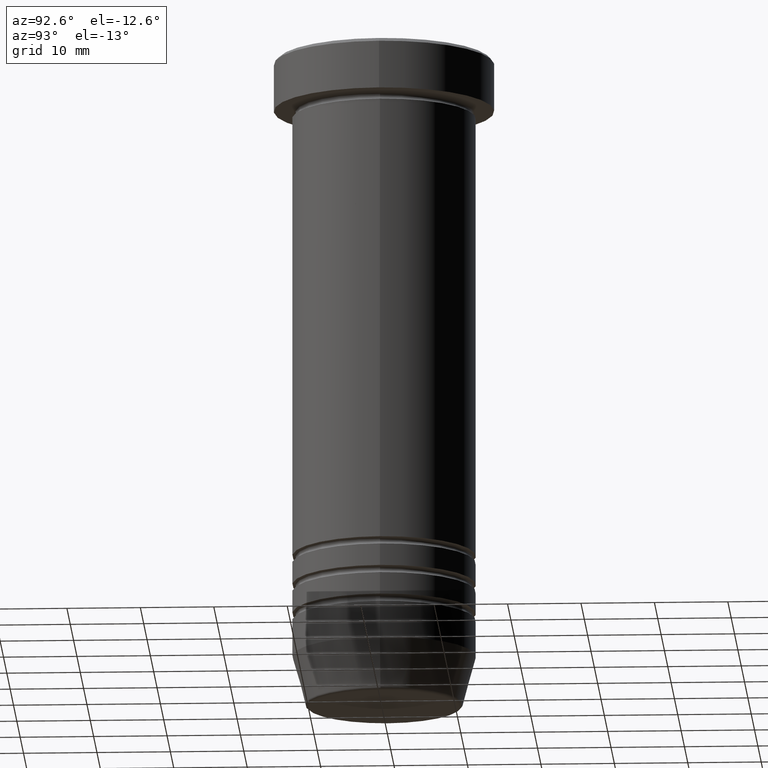
[diagram: clean part render]
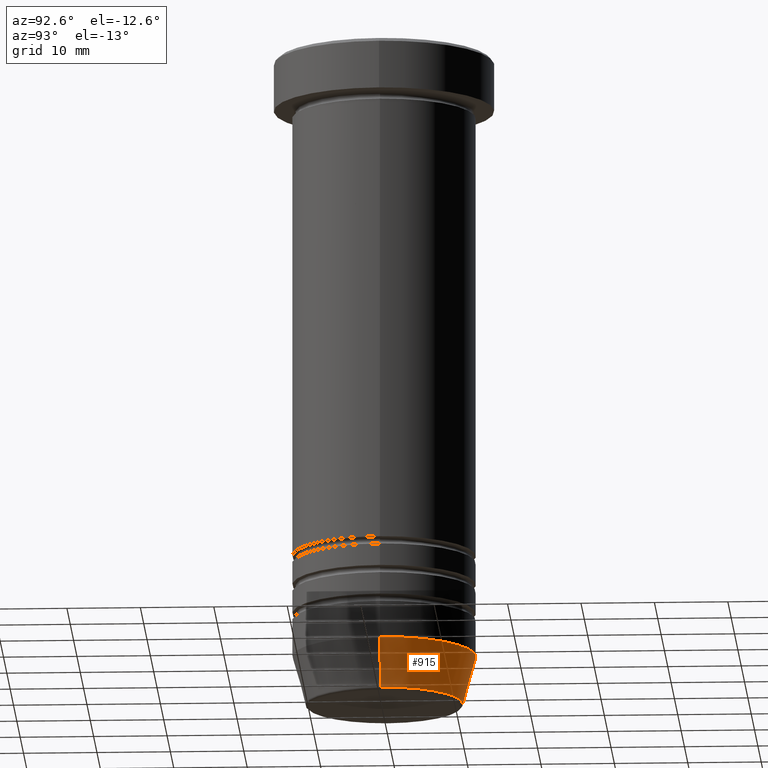
[diagram: same view with one face highlighted and labeled with its STEP entity id]
A machine part, auxiliary view. The second image highlights one B-rep face of the part: STEP entity #915.
In plain terms, the highlighted conical surface has half-angle 15 deg.
Its self-contained STEP definition (entity closure, byte-faithful):
#17 = DIRECTION ( 'NONE',  ( -0.000000000000000000, -0.000000000000000000, 1.000000000000000000 ) ) ;
#50 = FACE_OUTER_BOUND ( 'NONE', #231, .T. ) ;
#74 = EDGE_CURVE ( 'NONE', #505, #711, #742, .T. ) ;
#82 = EDGE_CURVE ( 'NONE', #284, #711, #452, .T. ) ;
#125 = DIRECTION ( 'NONE',  ( 1.000000000000000000, 0.000000000000000000, 0.000000000000000000 ) ) ;
#143 = CARTESIAN_POINT ( 'NONE',  ( -10.62435565298213547, 1.301108314342765923E-15, -90.00000000000000000 ) ) ;
#170 = VECTOR ( 'NONE', #1027, 1000.000000000000000 ) ;
#179 = DIRECTION ( 'NONE',  ( 0.2588190451025213501, 0.000000000000000000, 0.9659258262890680902 ) ) ;
#231 = EDGE_LOOP ( 'NONE', ( #396, #671, #285, #858 ) ) ;
#264 = EDGE_CURVE ( 'NONE', #451, #284, #267, .T. ) ;
#267 = CIRCLE ( 'NONE', #1001, 10.72365507213718416 ) ;
#284 = VERTEX_POINT ( 'NONE', #753 ) ;
#285 = ORIENTED_EDGE ( 'NONE', *, *, #74, .F. ) ;
#299 = AXIS2_PLACEMENT_3D ( 'NONE', #961, #862, #125 ) ;
#339 = AXIS2_PLACEMENT_3D ( 'NONE', #872, #597, #375 ) ;
#375 = DIRECTION ( 'NONE',  ( 1.000000000000000000, 0.000000000000000000, 0.000000000000000000 ) ) ;
#396 = ORIENTED_EDGE ( 'NONE', *, *, #264, .T. ) ;
#427 = CARTESIAN_POINT ( 'NONE',  ( 0.000000000000000000, 0.000000000000000000, -89.62940952255127058 ) ) ;
#442 = VECTOR ( 'NONE', #179, 1000.000000000000000 ) ;
#451 = VERTEX_POINT ( 'NONE', #485 ) ;
#452 = LINE ( 'NONE', #143, #170 ) ;
#466 = CARTESIAN_POINT ( 'NONE',  ( -12.50000000000000000, 1.530808498934191521E-15, -82.99999999999998579 ) ) ;
#476 = EDGE_CURVE ( 'NONE', #451, #505, #636, .T. ) ;
#485 = CARTESIAN_POINT ( 'NONE',  ( 10.72365507213718416, 0.000000000000000000, -89.62940952255127058 ) ) ;
#505 = VERTEX_POINT ( 'NONE', #646 ) ;
#561 = CARTESIAN_POINT ( 'NONE',  ( 10.62435565298213547, 0.000000000000000000, -90.00000000000000000 ) ) ;
#597 = DIRECTION ( 'NONE',  ( -0.000000000000000000, -0.000000000000000000, 1.000000000000000000 ) ) ;
#613 = CONICAL_SURFACE ( 'NONE', #339, 10.62435565298213547, 0.2617993877991500740 ) ;
#636 = LINE ( 'NONE', #561, #442 ) ;
#646 = CARTESIAN_POINT ( 'NONE',  ( 12.50000000000000000, 0.000000000000000000, -82.99999999999998579 ) ) ;
#671 = ORIENTED_EDGE ( 'NONE', *, *, #82, .T. ) ;
#675 = DIRECTION ( 'NONE',  ( -1.000000000000000000, 0.000000000000000000, 0.000000000000000000 ) ) ;
#711 = VERTEX_POINT ( 'NONE', #466 ) ;
#742 = CIRCLE ( 'NONE', #299, 12.50000000000000000 ) ;
#753 = CARTESIAN_POINT ( 'NONE',  ( -10.72365507213718416, 1.422038742429750121E-15, -89.62940952255127058 ) ) ;
#858 = ORIENTED_EDGE ( 'NONE', *, *, #476, .F. ) ;
#862 = DIRECTION ( 'NONE',  ( -0.000000000000000000, -0.000000000000000000, 1.000000000000000000 ) ) ;
#872 = CARTESIAN_POINT ( 'NONE',  ( 0.000000000000000000, 0.000000000000000000, -90.00000000000000000 ) ) ;
#915 = ADVANCED_FACE ( 'NONE', ( #50 ), #613, .T. ) ;
#961 = CARTESIAN_POINT ( 'NONE',  ( 0.000000000000000000, 0.000000000000000000, -82.99999999999998579 ) ) ;
#1001 = AXIS2_PLACEMENT_3D ( 'NONE', #427, #17, #675 ) ;
#1027 = DIRECTION ( 'NONE',  ( -0.2588190451025213501, 3.169619151431772337E-17, 0.9659258262890680902 ) ) ;